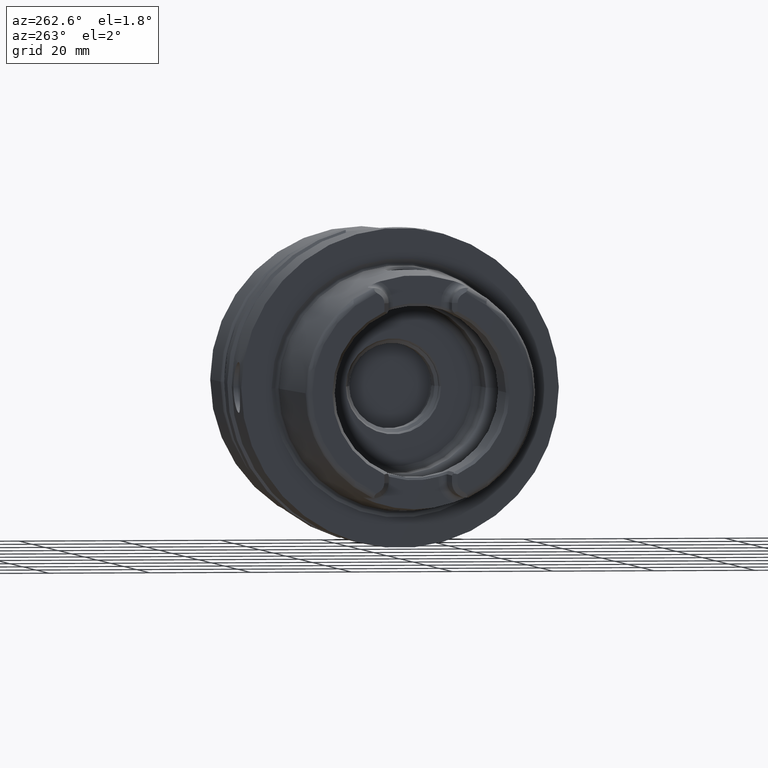
[diagram: clean part render]
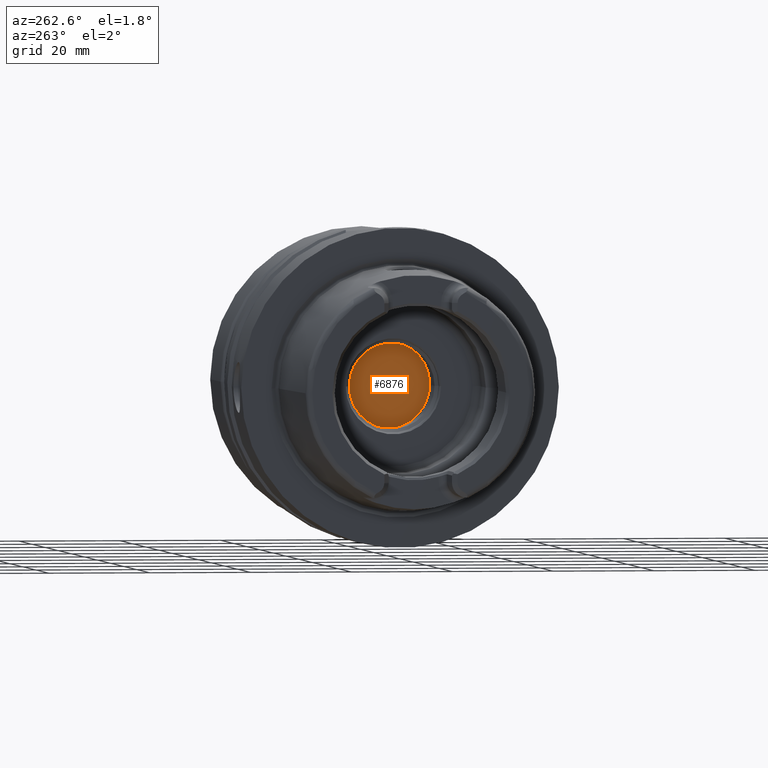
[diagram: same view with one face highlighted and labeled with its STEP entity id]
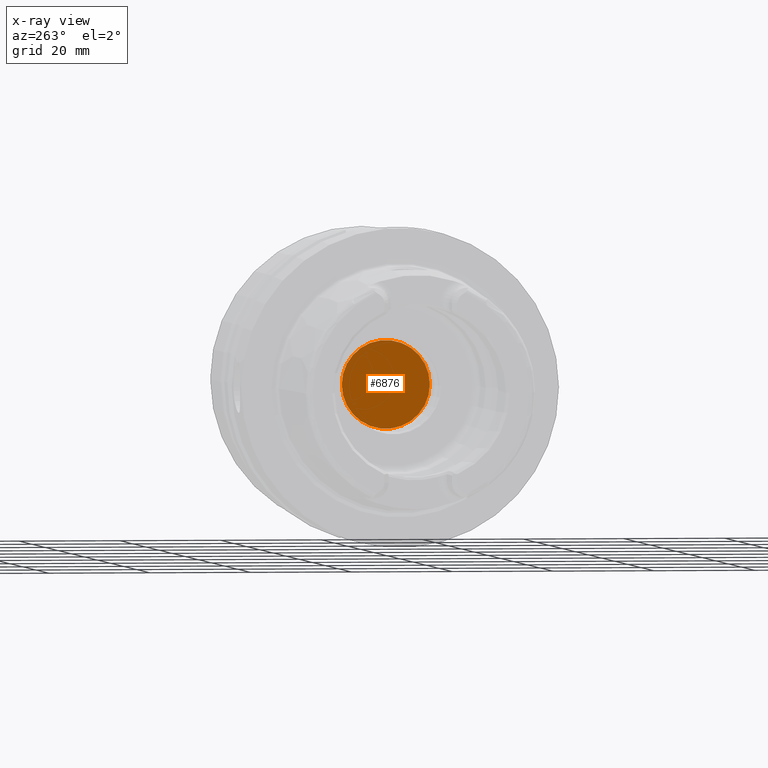
[diagram: x-ray of the same camera — body ghosted, the highlighted face saturated]
A machine part, auxiliary view. The second image highlights one B-rep face of the part: STEP entity #6876.
The next image is the same camera in x-ray: the body ghosted, the highlighted face saturated — about 0% of this face is hidden behind the body in this view.
In plain terms, the highlighted planar face has unit normal (1, 0, 0).
Its self-contained STEP definition (entity closure, byte-faithful):
#2795=CARTESIAN_POINT('',(2.18E1,0.E0,0.E0));
#2796=DIRECTION('',(1.E0,0.E0,0.E0));
#2797=DIRECTION('',(0.E0,1.E0,0.E0));
#2798=AXIS2_PLACEMENT_3D('',#2795,#2796,#2797);
#2805=CARTESIAN_POINT('',(2.18E1,0.E0,0.E0));
#2806=DIRECTION('',(-1.E0,0.E0,0.E0));
#2807=DIRECTION('',(0.E0,1.E0,0.E0));
#2808=AXIS2_PLACEMENT_3D('',#2805,#2806,#2807);
#3116=CARTESIAN_POINT('',(2.18E1,8.7325E0,0.E0));
#3118=VERTEX_POINT('',#3116);
#3126=CARTESIAN_POINT('',(2.18E1,-8.7325E0,0.E0));
#3128=VERTEX_POINT('',#3126);
#6867=CARTESIAN_POINT('',(2.18E1,0.E0,0.E0));
#6868=DIRECTION('',(1.E0,0.E0,0.E0));
#6869=DIRECTION('',(0.E0,-1.E0,0.E0));
#6870=AXIS2_PLACEMENT_3D('',#6867,#6868,#6869);
#6871=PLANE('',#6870);
#6872=ORIENTED_EDGE('',*,*,#6860,.F.);
#6873=ORIENTED_EDGE('',*,*,#6849,.T.);
#6874=EDGE_LOOP('',(#6872,#6873));
#6875=FACE_OUTER_BOUND('',#6874,.F.);
#6876=ADVANCED_FACE('',(#6875),#6871,.F.);
#2799=CIRCLE('',#2798,8.7325E0);
#2809=CIRCLE('',#2808,8.7325E0);
#6849=EDGE_CURVE('',#3118,#3128,#2799,.T.);
#6860=EDGE_CURVE('',#3118,#3128,#2809,.T.);